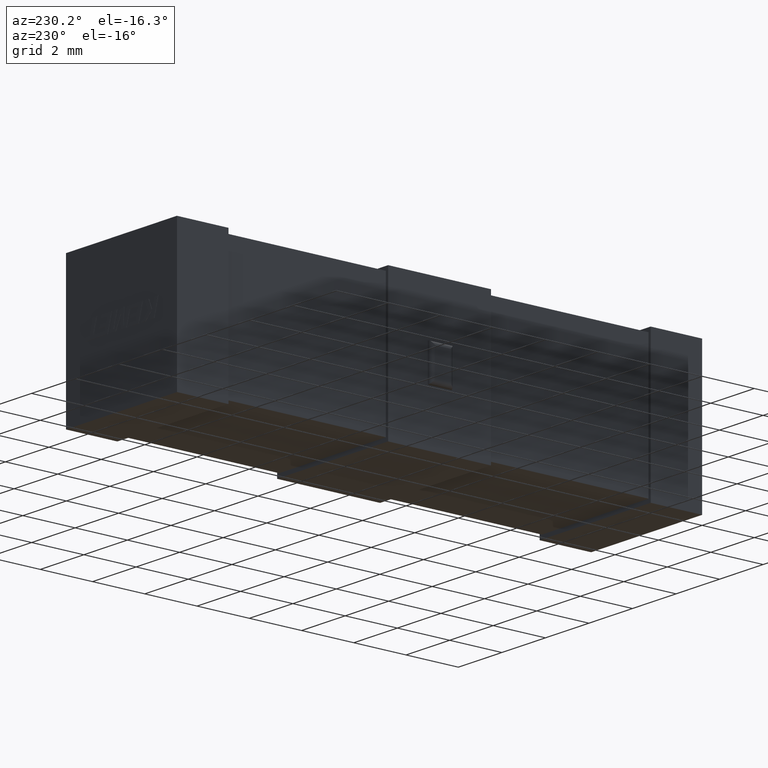
[diagram: clean part render]
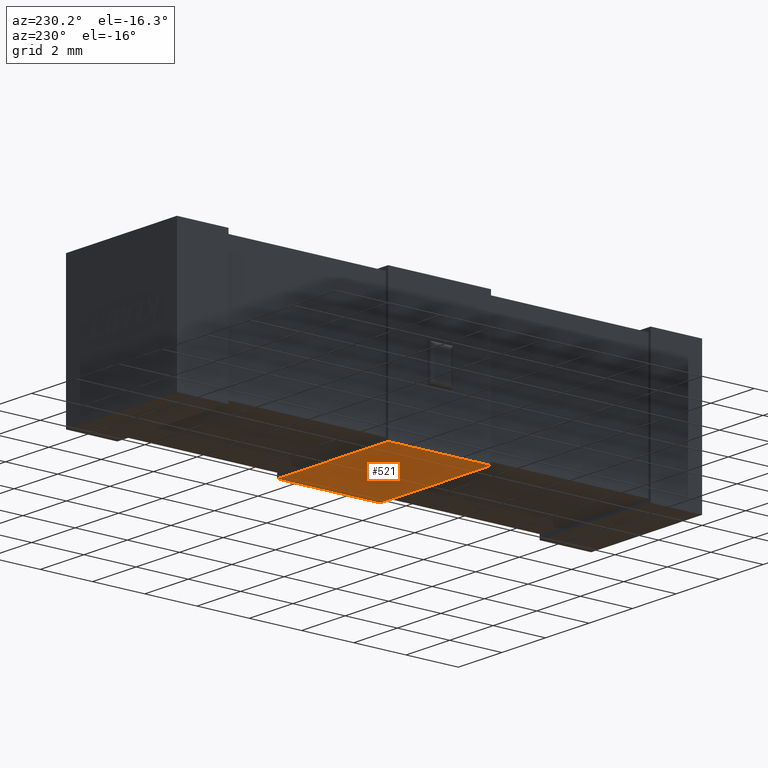
[diagram: same view with one face highlighted and labeled with its STEP entity id]
A machine part, auxiliary view. The second image highlights one B-rep face of the part: STEP entity #521.
In plain terms, the highlighted planar face has unit normal (0, 0, -1).
Its self-contained STEP definition (entity closure, byte-faithful):
#5 = LINE ( 'NONE', #1638, #1284 ) ;
#272 = LINE ( 'NONE', #1224, #1410 ) ;
#411 = DIRECTION ( 'NONE',  ( -1.000000000000000000, -0.0000000000000000000, 0.0000000000000000000 ) ) ;
#521 = ADVANCED_FACE ( 'NONE', ( #3313 ), #713, .T. ) ;
#713 = PLANE ( 'NONE',  #1099 ) ;
#757 = ORIENTED_EDGE ( 'NONE', *, *, #1972, .F. ) ;
#766 = VERTEX_POINT ( 'NONE', #2680 ) ;
#996 = EDGE_CURVE ( 'NONE', #1533, #2439, #2627, .T. ) ;
#1099 = AXIS2_PLACEMENT_3D ( 'NONE', #1734, #1710, #3271 ) ;
#1212 = ORIENTED_EDGE ( 'NONE', *, *, #996, .F. ) ;
#1224 = CARTESIAN_POINT ( 'NONE',  ( 1.472000959639135700E-015, 8.080199999999999600, 1.734723475976807100E-015 ) ) ;
#1240 = VERTEX_POINT ( 'NONE', #2406 ) ;
#1284 = VECTOR ( 'NONE', #1970, 1000.000000000000000 ) ;
#1359 = VECTOR ( 'NONE', #2449, 1000.000000000000000 ) ;
#1410 = VECTOR ( 'NONE', #411, 1000.000000000000000 ) ;
#1533 = VERTEX_POINT ( 'NONE', #3061 ) ;
#1569 = VECTOR ( 'NONE', #2521, 1000.000000000000000 ) ;
#1571 = ORIENTED_EDGE ( 'NONE', *, *, #2506, .T. ) ;
#1638 = CARTESIAN_POINT ( 'NONE',  ( 5.100000000000000500, 0.0000000000000000000, 0.0000000000000000000 ) ) ;
#1688 = LINE ( 'NONE', #3257, #1569 ) ;
#1710 = DIRECTION ( 'NONE',  ( 0.0000000000000000000, 0.0000000000000000000, -1.000000000000000000 ) ) ;
#1734 = CARTESIAN_POINT ( 'NONE',  ( 0.0000000000000000000, 0.0000000000000000000, 0.0000000000000000000 ) ) ;
#1858 = EDGE_LOOP ( 'NONE', ( #757, #2855, #1212, #1571 ) ) ;
#1970 = DIRECTION ( 'NONE',  ( -4.315232527305490500E-017, 1.000000000000000000, 0.0000000000000000000 ) ) ;
#1972 = EDGE_CURVE ( 'NONE', #1240, #766, #5, .T. ) ;
#2183 = CARTESIAN_POINT ( 'NONE',  ( 0.0000000000000000000, 8.080199999999999600, 0.0000000000000000000 ) ) ;
#2406 = CARTESIAN_POINT ( 'NONE',  ( 5.100000000000000500, 8.080199999999999600, 1.734723475976807100E-015 ) ) ;
#2438 = CARTESIAN_POINT ( 'NONE',  ( 0.0000000000000000000, 0.0000000000000000000, 0.0000000000000000000 ) ) ;
#2439 = VERTEX_POINT ( 'NONE', #2183 ) ;
#2449 = DIRECTION ( 'NONE',  ( -0.0000000000000000000, -1.000000000000000000, -0.0000000000000000000 ) ) ;
#2506 = EDGE_CURVE ( 'NONE', #1533, #766, #1688, .T. ) ;
#2521 = DIRECTION ( 'NONE',  ( 1.000000000000000000, 0.0000000000000000000, 0.0000000000000000000 ) ) ;
#2574 = EDGE_CURVE ( 'NONE', #1240, #2439, #272, .T. ) ;
#2627 = LINE ( 'NONE', #2438, #1359 ) ;
#2680 = CARTESIAN_POINT ( 'NONE',  ( 5.100000000000000500, 12.01980000000000000, 1.734723475976807100E-015 ) ) ;
#2855 = ORIENTED_EDGE ( 'NONE', *, *, #2574, .T. ) ;
#3061 = CARTESIAN_POINT ( 'NONE',  ( 8.910775039955969800E-016, 12.01980000000000000, 1.734723475976807100E-015 ) ) ;
#3257 = CARTESIAN_POINT ( 'NONE',  ( 8.910775039955969800E-016, 12.01980000000000000, 1.734723475976807100E-015 ) ) ;
#3271 = DIRECTION ( 'NONE',  ( -1.000000000000000000, 0.0000000000000000000, -0.0000000000000000000 ) ) ;
#3313 = FACE_OUTER_BOUND ( 'NONE', #1858, .T. ) ;